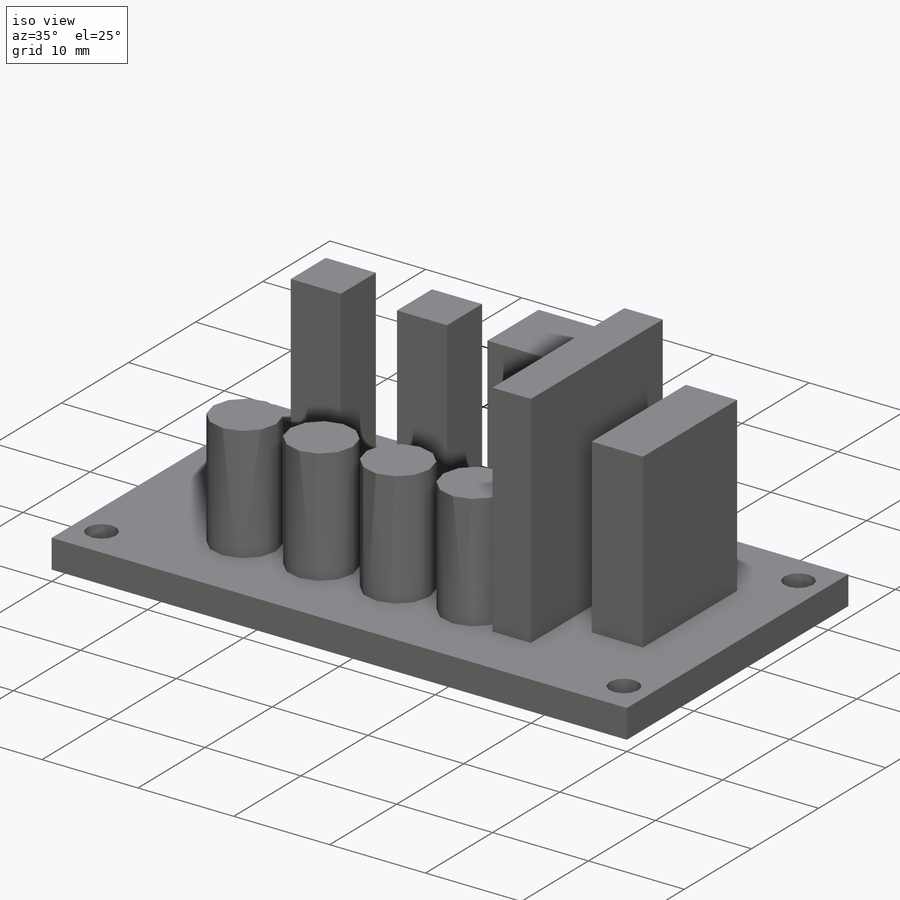
[diagram: iso view]
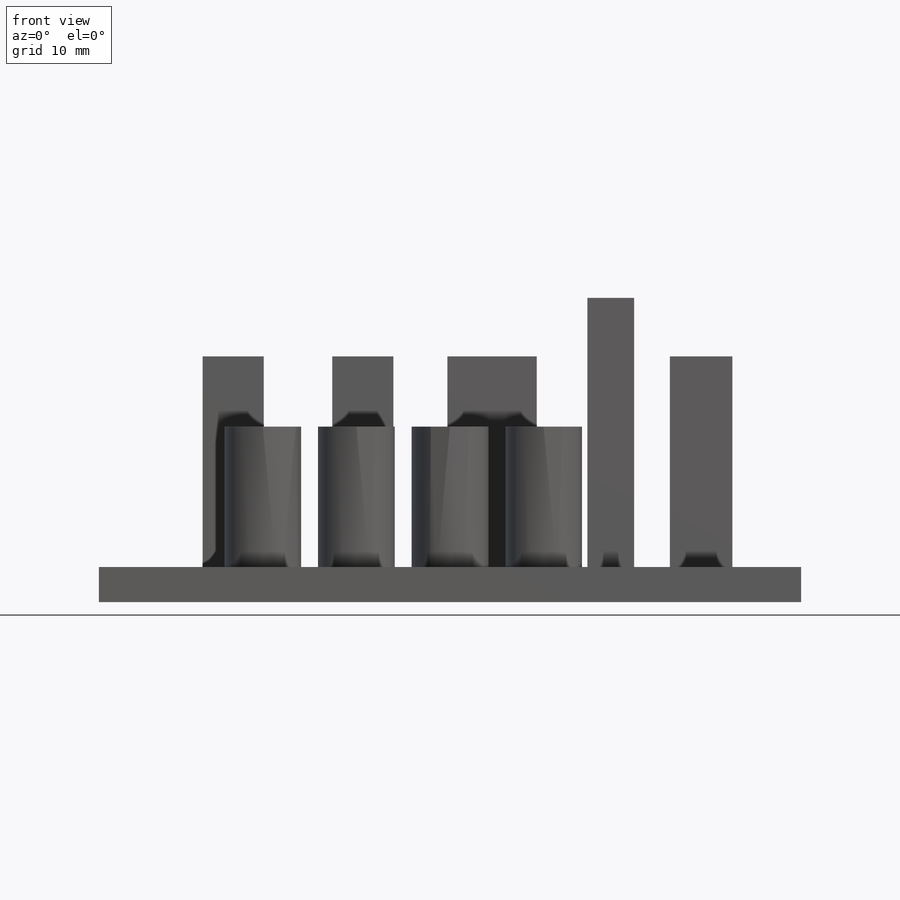
[diagram: front view]
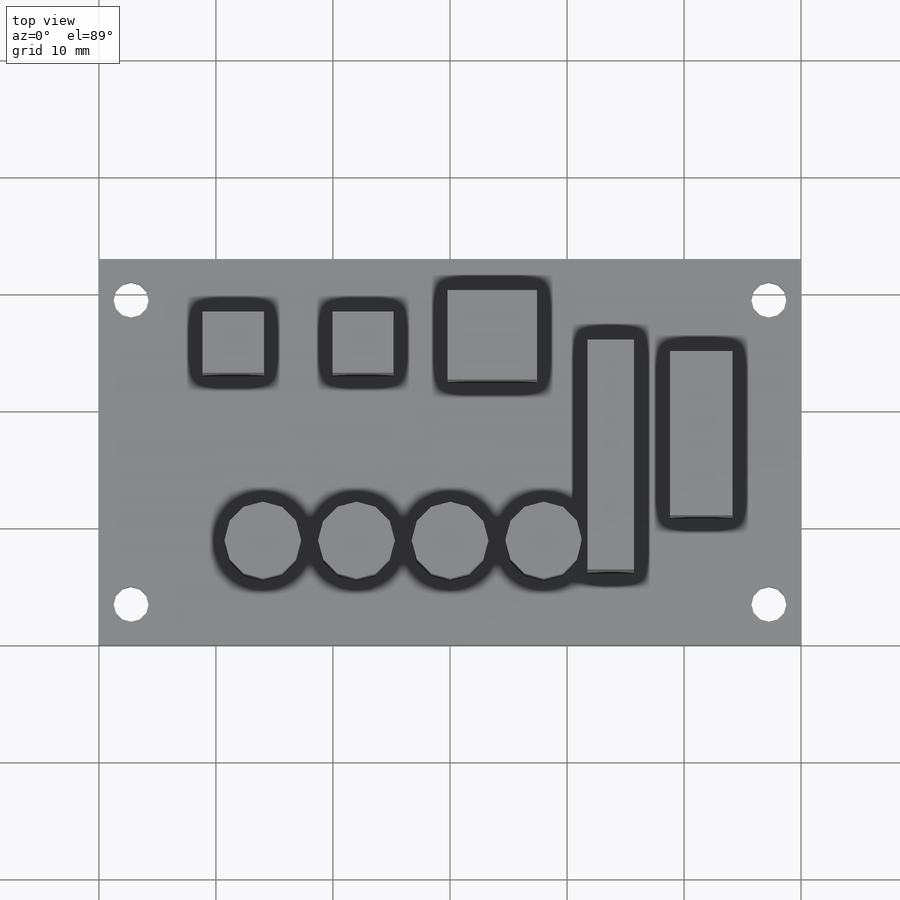
[diagram: top view]
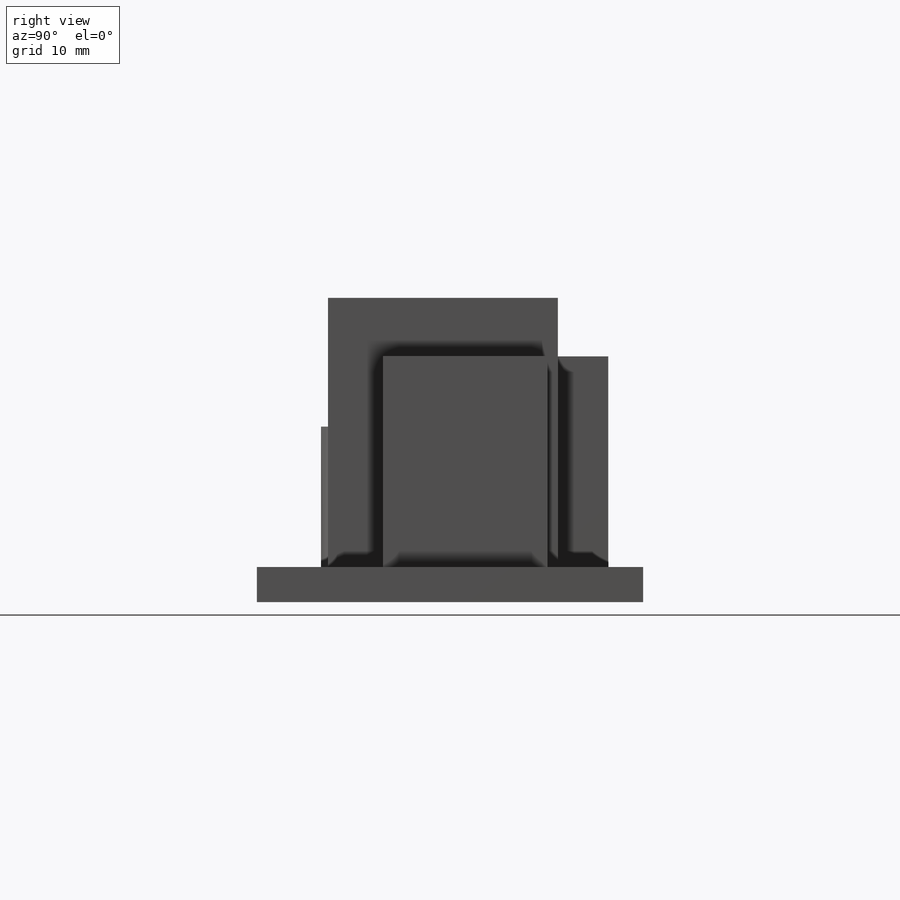
[diagram: right view]
SOLIDWORKS PART (.sldprt)
format: sldprt  version: not decoded by parser v0  size: 235,520 bytes
history: native  units: mm
features: sketch x4, extrude x4, plane x3, material x1 (+12 scaffold rows collapsed)
feature tree (24):
  scaffold x12  (default folders/planes/origin — collapsed)
  material  "Matériau <non spécifié>"
  plane  "Face"
  plane  "Dessus"
  plane  "Droite"
  sketch  "Esquisse1"  dims[c1.D3=3.0mm c1.D1=33.0mm c1.D2=60.0mm c1.D4=5.0mm c1.D5=5.0mm c2.D4=26.0mm c2.D5=54.5mm]
  extrude  "Extrusion1"  Depth=3mm
  sketch  "Esquisse2"
  extrude  "Extrusion2"  Depth=18mm
  sketch  "Esquisse3"  dims[D1=8.0mm D2=8.0mm D3=8.0mm]
  extrude  "Extrusion3"  Depth=12mm
  sketch  "Esquisse4"  dims[D1=4.0mm]
  extrude  "Extrusion4"  Depth=23mm
decode coverage: 7 of 8 modeling features carry decoded parameters
note: suppression state not decoded; provenance and decode notes live in map.json
